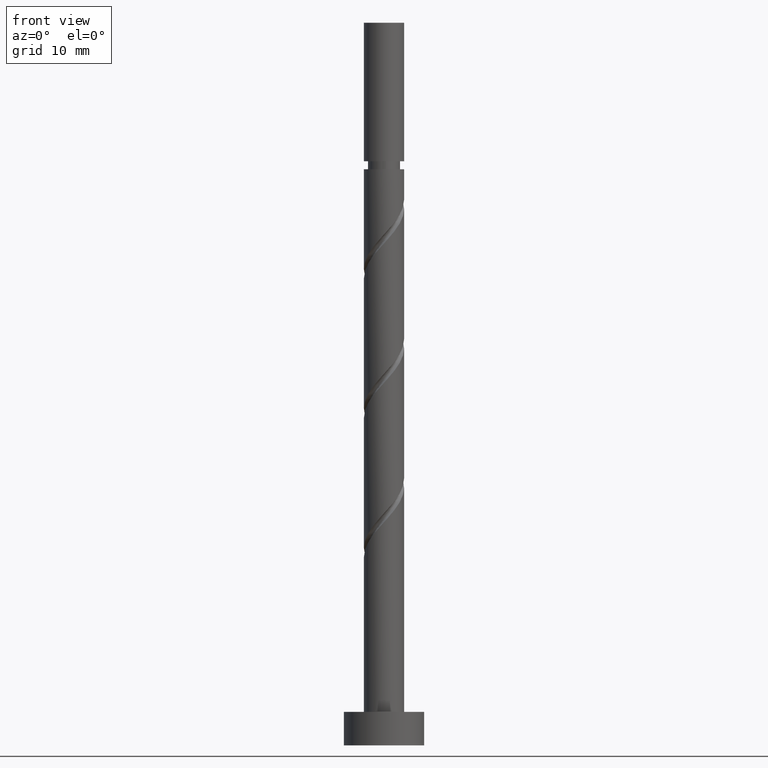
[diagram: clean part render]
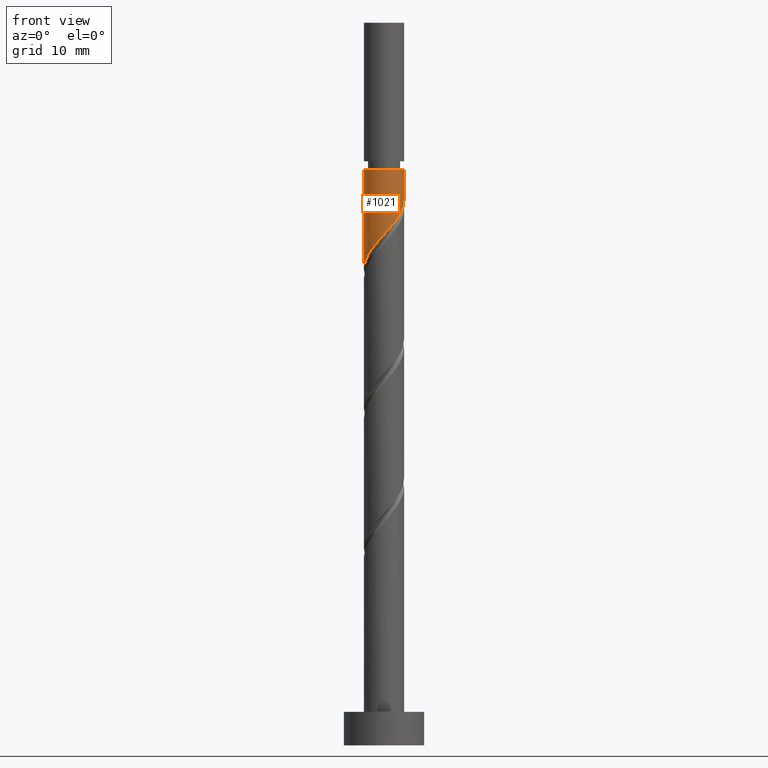
[diagram: same view with one face highlighted and labeled with its STEP entity id]
A machine part, front view. The second image highlights one B-rep face of the part: STEP entity #1021.
In plain terms, the highlighted cylindrical surface (edge-blend (fillet) strip) has radius 3 mm, axis along (-0, -0, -1).
Its self-contained STEP definition (entity closure, byte-faithful):
#12 = CARTESIAN_POINT ( 'NONE',  ( 3.000000000000002665, 3.673940397442062333E-16, 86.09792561489059892 ) ) ;
#30 = CARTESIAN_POINT ( 'NONE',  ( -2.211065689225168551, -2.027606598413813188, 73.59792561489058471 ) ) ;
#55 = CARTESIAN_POINT ( 'NONE',  ( 0.000000000000000000, 0.000000000000000000, 86.09792561489059892 ) ) ;
#139 = CARTESIAN_POINT ( 'NONE',  ( 1.245111594254574738, -2.729413328510878589, 77.76459228155728454 ) ) ;
#145 = CARTESIAN_POINT ( 'NONE',  ( -2.926619631508480257, -0.8128149918040494804, 72.03542561489061313 ) ) ;
#167 = CARTESIAN_POINT ( 'NONE',  ( 3.000000000000000000, -5.997241113282357339E-16, 81.55439472302754211 ) ) ;
#195 = DIRECTION ( 'NONE',  ( -1.000000000000000000, 0.000000000000000000, 0.000000000000000000 ) ) ;
#273 = CARTESIAN_POINT ( 'NONE',  ( -2.980586974261064004, -0.3407363920471077612, 71.51459228155727033 ) ) ;
#312 = CARTESIAN_POINT ( 'NONE',  ( -3.000000000000000000, 2.398896445312943034E-16, 71.13772805636084229 ) ) ;
#325 = VECTOR ( 'NONE', #706, 1000.000000000000000 ) ;
#371 = CARTESIAN_POINT ( 'NONE',  ( -1.476283534877583570, -2.611625341554440372, 74.63959228155725611 ) ) ;
#410 = CARTESIAN_POINT ( 'NONE',  ( 2.377805000122526380, -1.889924352937059293, 79.32709228155727033 ) ) ;
#454 = AXIS2_PLACEMENT_3D ( 'NONE', #55, #1532, #195 ) ;
#491 = VERTEX_POINT ( 'NONE', #12 ) ;
#503 = CARTESIAN_POINT ( 'NONE',  ( -0.5969924622639706246, -2.939999999999999947, 75.68125894822394173 ) ) ;
#511 = CARTESIAN_POINT ( 'NONE',  ( -2.532207025513276477, -1.677408196705099996, 73.07709228155725611 ) ) ;
#519 = CARTESIAN_POINT ( 'NONE',  ( 3.000000000000000000, -5.997241113282357339E-16, 81.55439472302754211 ) ) ;
#521 = CARTESIAN_POINT ( 'NONE',  ( -3.000000000000000444, -0.1709212123392950533, 71.32723914556814293 ) ) ;
#543 = DIRECTION ( 'NONE',  ( -0.000000000000000000, -0.000000000000000000, -1.000000000000000000 ) ) ;
#573 =( BOUNDED_CURVE ( )  B_SPLINE_CURVE ( 2, ( #167, #878, #661, #1215, #1137, #410, #904, #1113, #139, #627, #1225, #1103, #503, #987, #371, #748, #30, #511, #995, #145, #273, #521, #1005 ),
 .UNSPECIFIED., .F., .T. ) 
 B_SPLINE_CURVE_WITH_KNOTS ( ( 3, 2, 2, 2, 2, 2, 2, 2, 2, 2, 2, 3 ),
 ( 0.3045322023138550827, 0.3125000000000000000, 0.3250000000000000111, 0.3375000000000000222, 0.3499999999999999778, 0.3624999999999999889, 0.3750000000000000000, 0.3875000000000000111, 0.4000000000000000222, 0.4124999999999999778, 0.4249999999999999889, 0.4295322023138553047 ),
 .UNSPECIFIED. ) 
 CURVE ( )  GEOMETRIC_REPRESENTATION_ITEM ( )  RATIONAL_B_SPLINE_CURVE ( ( 0.9039174447099296295, 0.9019565955404588165, 0.9090909090909071733, 0.8978984914501233483, 0.9090909090909071733, 0.8978984914501233483, 0.9090909090909071733, 0.8978984914501233483, 0.9090909090909071733, 0.8978984914501233483, 0.9090909090909071733, 0.8978984914501233483, 0.9090909090909071733, 0.8978984914501233483, 0.9090909090909071733, 0.8978984914501233483, 0.9090909090909071733, 0.8978984914501233483, 0.9090909090909071733, 0.8978984914501233483, 0.9090909090909071733, 0.9050328050005715941, 0.9039174447099294074 ) ) 
 REPRESENTATION_ITEM ( '' )  );
#627 = CARTESIAN_POINT ( 'NONE',  ( 0.8128149918040490363, -2.926619631508480257, 77.24375894822394173 ) ) ;
#637 = VERTEX_POINT ( 'NONE', #312 ) ;
#661 = CARTESIAN_POINT ( 'NONE',  ( 2.939999999999999947, -0.5969924622639708467, 80.88959228155727033 ) ) ;
#679 = FACE_OUTER_BOUND ( 'NONE', #839, .T. ) ;
#706 = DIRECTION ( 'NONE',  ( -0.000000000000000000, -0.000000000000000000, -1.000000000000000000 ) ) ;
#730 = CARTESIAN_POINT ( 'NONE',  ( -3.000000000000002665, 0.000000000000000000, 86.09792561489059892 ) ) ;
#748 = CARTESIAN_POINT ( 'NONE',  ( -1.889924352937059293, -2.377805000122526380, 74.11875894822394173 ) ) ;
#774 = CARTESIAN_POINT ( 'NONE',  ( 3.000000000000000444, 3.673940397442060361E-16, 108.0000000000000000 ) ) ;
#811 = CIRCLE ( 'NONE', #454, 3.000000000000002220 ) ;
#829 = ORIENTED_EDGE ( 'NONE', *, *, #999, .T. ) ;
#839 = EDGE_LOOP ( 'NONE', ( #846, #829, #1369, #946 ) ) ;
#846 = ORIENTED_EDGE ( 'NONE', *, *, #1136, .F. ) ;
#878 = CARTESIAN_POINT ( 'NONE',  ( 3.000000000000000888, -0.3015113445777592993, 81.22009014761970036 ) ) ;
#904 = CARTESIAN_POINT ( 'NONE',  ( 2.027606598413813188, -2.211065689225168551, 78.80625894822392752 ) ) ;
#910 = DIRECTION ( 'NONE',  ( -0.000000000000000000, -0.000000000000000000, -1.000000000000000000 ) ) ;
#946 = ORIENTED_EDGE ( 'NONE', *, *, #953, .F. ) ;
#953 = EDGE_CURVE ( 'NONE', #1479, #637, #573, .T. ) ;
#987 = CARTESIAN_POINT ( 'NONE',  ( -1.062642716818107624, -2.845445682986353919, 75.16042561489059892 ) ) ;
#995 = CARTESIAN_POINT ( 'NONE',  ( -2.729413328510878589, -1.245111594254574738, 72.55625894822392752 ) ) ;
#999 = EDGE_CURVE ( 'NONE', #491, #1300, #811, .T. ) ;
#1005 = CARTESIAN_POINT ( 'NONE',  ( -2.999999999999999556, 2.398896445312943034E-16, 71.13772805636084229 ) ) ;
#1021 = ADVANCED_FACE ( 'NONE', ( #679 ), #1268, .T. ) ;
#1064 = LINE ( 'NONE', #1433, #325 ) ;
#1087 = AXIS2_PLACEMENT_3D ( 'NONE', #1154, #543, #1260 ) ;
#1103 = CARTESIAN_POINT ( 'NONE',  ( -0.1313422077098340413, -3.034554317013645974, 76.20209228155728454 ) ) ;
#1113 = CARTESIAN_POINT ( 'NONE',  ( 1.677408196705099996, -2.532207025513276477, 78.28542561489059892 ) ) ;
#1136 = EDGE_CURVE ( 'NONE', #491, #1479, #1524, .T. ) ;
#1137 = CARTESIAN_POINT ( 'NONE',  ( 2.611625341554440372, -1.476283534877583570, 79.84792561489059892 ) ) ;
#1154 = CARTESIAN_POINT ( 'NONE',  ( 0.000000000000000000, 0.000000000000000000, 108.0000000000000000 ) ) ;
#1215 = CARTESIAN_POINT ( 'NONE',  ( 2.845445682986353919, -1.062642716818107624, 80.36875894822394173 ) ) ;
#1225 = CARTESIAN_POINT ( 'NONE',  ( 0.3407363920471076502, -2.980586974261063560, 76.72292561489061313 ) ) ;
#1260 = DIRECTION ( 'NONE',  ( -1.000000000000000000, 0.000000000000000000, 0.000000000000000000 ) ) ;
#1268 = CYLINDRICAL_SURFACE ( 'NONE', #1087, 3.000000000000000444 ) ;
#1300 = VERTEX_POINT ( 'NONE', #730 ) ;
#1341 = VECTOR ( 'NONE', #910, 1000.000000000000000 ) ;
#1369 = ORIENTED_EDGE ( 'NONE', *, *, #1415, .T. ) ;
#1415 = EDGE_CURVE ( 'NONE', #1300, #637, #1064, .T. ) ;
#1433 = CARTESIAN_POINT ( 'NONE',  ( -3.000000000000000444, 0.000000000000000000, 108.0000000000000000 ) ) ;
#1479 = VERTEX_POINT ( 'NONE', #519 ) ;
#1524 = LINE ( 'NONE', #774, #1341 ) ;
#1532 = DIRECTION ( 'NONE',  ( -0.000000000000000000, -0.000000000000000000, -1.000000000000000000 ) ) ;